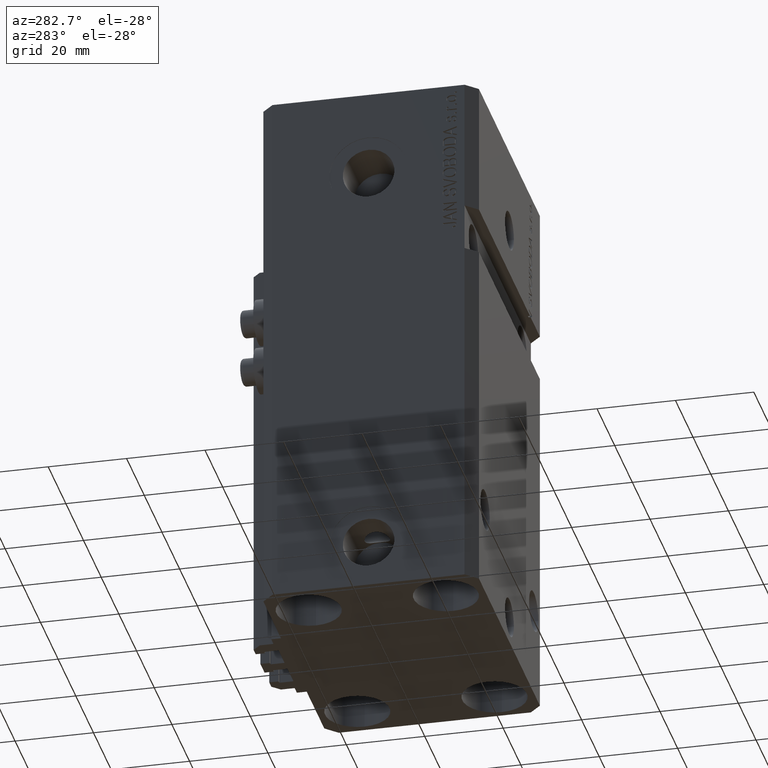
[diagram: clean part render]
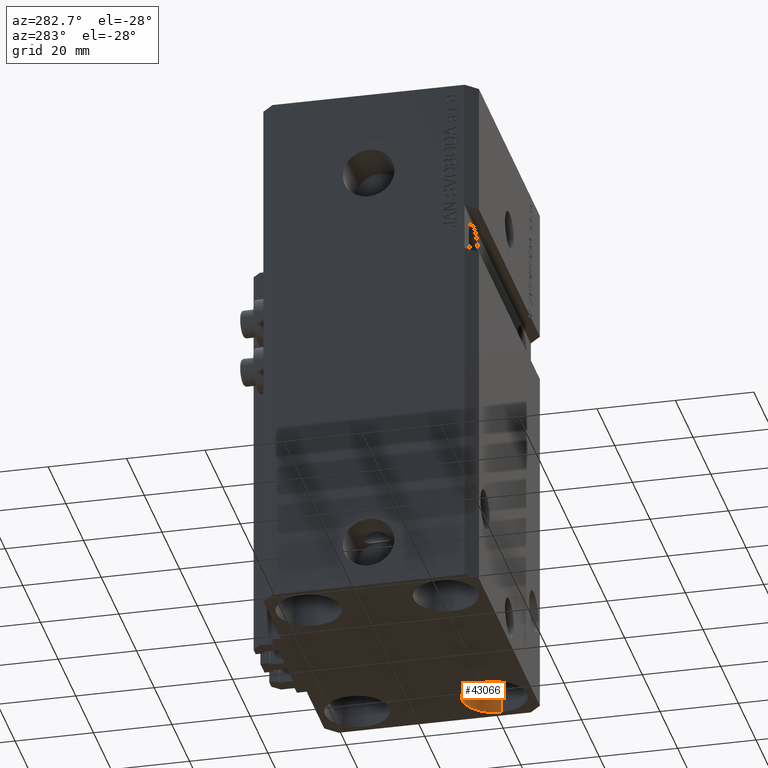
[diagram: same view with one face highlighted and labeled with its STEP entity id]
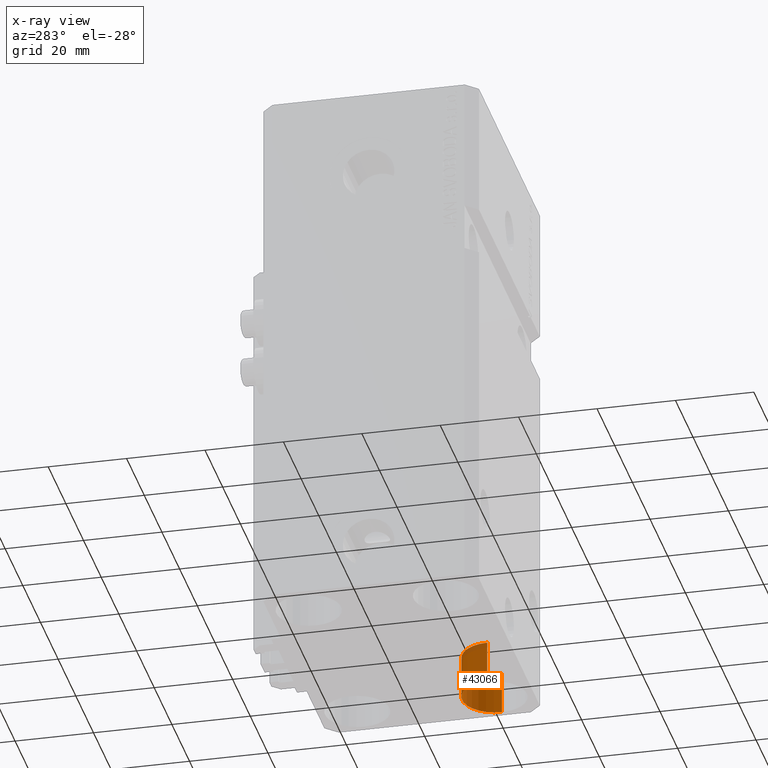
[diagram: x-ray of the same camera — body ghosted, the highlighted face saturated]
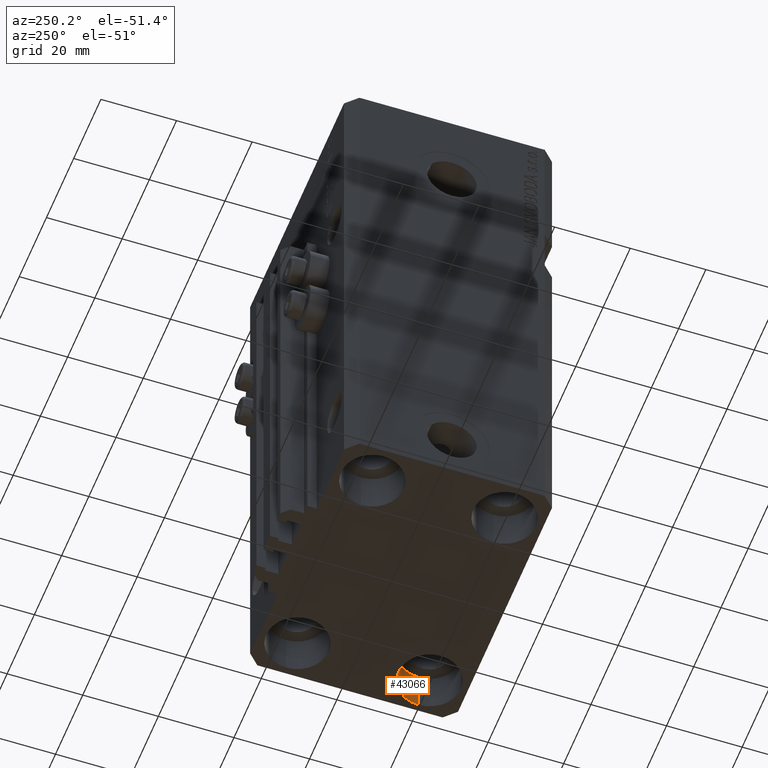
[diagram: same view with one face highlighted and labeled with its STEP entity id]
A machine part, auxiliary view. The second image highlights one B-rep face of the part: STEP entity #43066.
The next image is the same camera in x-ray: the body ghosted, the highlighted face saturated — about 10% of this face is hidden behind the body in this view.
A second angle (auxiliary view) of the same face is appended — the face is thin or edge-on in the first view.
In plain terms, the highlighted cylindrical surface (edge-blend (fillet) strip) has radius 8.25 mm, axis along (-0, -0, -1).
Its self-contained STEP definition (entity closure, byte-faithful):
#1083 = DIRECTION ( 'NONE',  ( -0.000000000000000000, -0.000000000000000000, 1.000000000000000000 ) ) ;
#1983 = LINE ( 'NONE', #9411, #43859 ) ;
#3754 = ORIENTED_EDGE ( 'NONE', *, *, #8177, .T. ) ;
#4383 = ORIENTED_EDGE ( 'NONE', *, *, #10081, .T. ) ;
#6903 = CARTESIAN_POINT ( 'NONE',  ( 35.75000000000000711, -17.50000000000000000, -138.0000000000000000 ) ) ;
#8177 = EDGE_CURVE ( 'NONE', #34278, #17386, #44551, .T. ) ;
#9322 = VERTEX_POINT ( 'NONE', #6903 ) ;
#9411 = CARTESIAN_POINT ( 'NONE',  ( 19.25000000000000000, -17.50000000000000000, -127.0000000000000000 ) ) ;
#10081 = EDGE_CURVE ( 'NONE', #17386, #43664, #1983, .T. ) ;
#10958 = EDGE_CURVE ( 'NONE', #9322, #43664, #13227, .T. ) ;
#13227 = CIRCLE ( 'NONE', #24729, 8.250000000000000000 ) ;
#14039 = FACE_OUTER_BOUND ( 'NONE', #39573, .T. ) ;
#14122 = VECTOR ( 'NONE', #39506, 1000.000000000000000 ) ;
#15043 = DIRECTION ( 'NONE',  ( 1.000000000000000000, 0.000000000000000000, 0.000000000000000000 ) ) ;
#16858 = DIRECTION ( 'NONE',  ( -0.000000000000000000, -0.000000000000000000, -1.000000000000000000 ) ) ;
#17386 = VERTEX_POINT ( 'NONE', #23977 ) ;
#17732 = EDGE_CURVE ( 'NONE', #34278, #9322, #42861, .T. ) ;
#18929 = ORIENTED_EDGE ( 'NONE', *, *, #10958, .F. ) ;
#22004 = CARTESIAN_POINT ( 'NONE',  ( 35.75000000000000711, -17.50000000000000000, -127.0000000000000000 ) ) ;
#23977 = CARTESIAN_POINT ( 'NONE',  ( 19.25000000000000000, -17.50000000000000000, -127.0000000000000000 ) ) ;
#24729 = AXIS2_PLACEMENT_3D ( 'NONE', #29438, #37111, #26296 ) ;
#26296 = DIRECTION ( 'NONE',  ( 1.000000000000000000, 0.000000000000000000, 0.000000000000000000 ) ) ;
#27897 = AXIS2_PLACEMENT_3D ( 'NONE', #36086, #39211, #46419 ) ;
#29438 = CARTESIAN_POINT ( 'NONE',  ( 27.50000000000000355, -17.50000000000000000, -138.0000000000000000 ) ) ;
#29985 = AXIS2_PLACEMENT_3D ( 'NONE', #33937, #1083, #15043 ) ;
#33937 = CARTESIAN_POINT ( 'NONE',  ( 27.50000000000000355, -17.50000000000000000, -127.0000000000000000 ) ) ;
#34278 = VERTEX_POINT ( 'NONE', #22004 ) ;
#35616 = CYLINDRICAL_SURFACE ( 'NONE', #27897, 8.250000000000003553 ) ;
#36086 = CARTESIAN_POINT ( 'NONE',  ( 27.50000000000000355, -17.50000000000000000, -127.0000000000000000 ) ) ;
#37111 = DIRECTION ( 'NONE',  ( -0.000000000000000000, -0.000000000000000000, 1.000000000000000000 ) ) ;
#37563 = CARTESIAN_POINT ( 'NONE',  ( 19.25000000000000000, -17.50000000000000000, -138.0000000000000000 ) ) ;
#39211 = DIRECTION ( 'NONE',  ( -0.000000000000000000, -0.000000000000000000, -1.000000000000000000 ) ) ;
#39506 = DIRECTION ( 'NONE',  ( -0.000000000000000000, -0.000000000000000000, -1.000000000000000000 ) ) ;
#39573 = EDGE_LOOP ( 'NONE', ( #41411, #3754, #4383, #18929 ) ) ;
#41411 = ORIENTED_EDGE ( 'NONE', *, *, #17732, .F. ) ;
#42861 = LINE ( 'NONE', #47180, #14122 ) ;
#43066 = ADVANCED_FACE ( 'NONE', ( #14039 ), #35616, .F. ) ;
#43664 = VERTEX_POINT ( 'NONE', #37563 ) ;
#43859 = VECTOR ( 'NONE', #16858, 1000.000000000000000 ) ;
#44551 = CIRCLE ( 'NONE', #29985, 8.250000000000000000 ) ;
#46419 = DIRECTION ( 'NONE',  ( -1.000000000000000000, 0.000000000000000000, 0.000000000000000000 ) ) ;
#47180 = CARTESIAN_POINT ( 'NONE',  ( 35.75000000000000711, -17.50000000000000000, -127.0000000000000000 ) ) ;